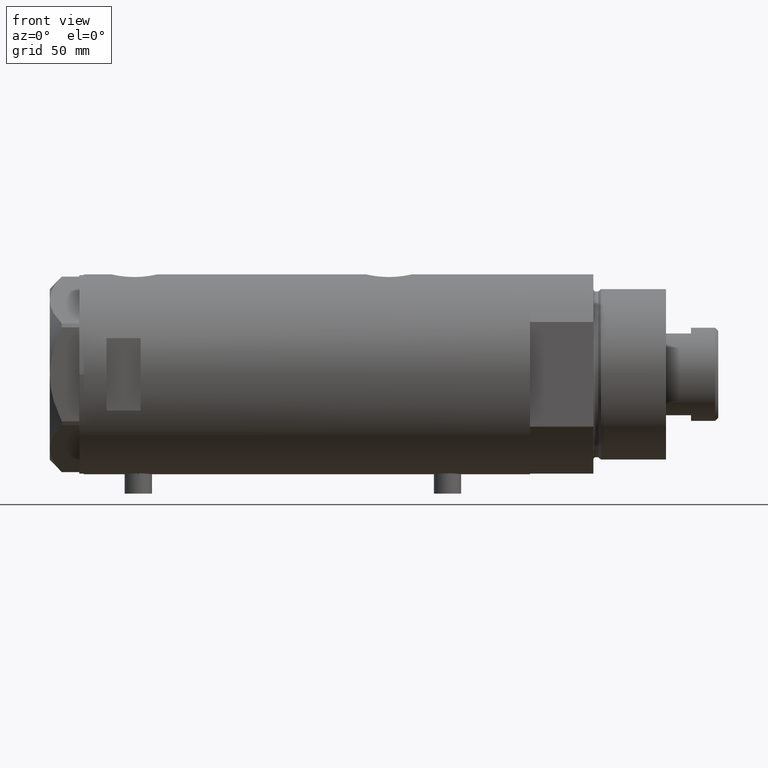
[diagram: clean part render]
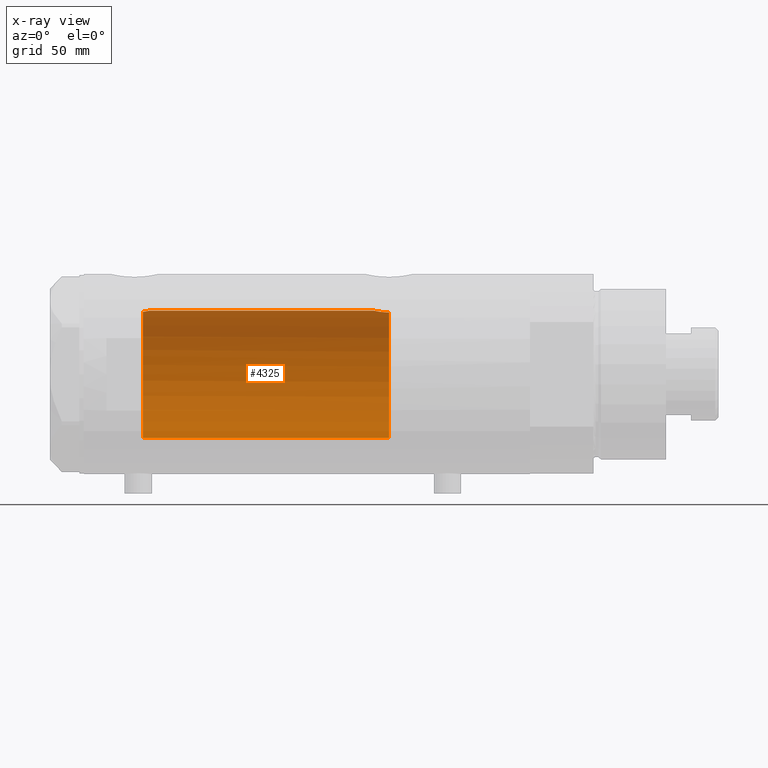
[diagram: x-ray — body ghosted, one internal face saturated and labeled with its STEP entity id]
A machine part, front view, then the same camera in x-ray: the body is ghosted and one INTERNAL B-rep face — a face not visible from any outside direction — is saturated and labeled: STEP entity #4325.
In plain terms, the highlighted cylindrical surface (partial cylindrical patch) has radius 28 mm, axis along (1, 0, -0).
Its self-contained STEP definition (entity closure, byte-faithful):
#82 = CARTESIAN_POINT ( 'NONE',  ( 27.57921322802619457, 4.838471943606465153, -31.63541026849052429 ) ) ;
#95 = EDGE_CURVE ( 'NONE', #543, #1151, #2525, .T. ) ;
#157 = CARTESIAN_POINT ( 'NONE',  ( 27.59012538417911031, 4.776664836238046163, 71.36675298569846859 ) ) ;
#173 = EDGE_CURVE ( 'NONE', #1151, #3451, #1656, .T. ) ;
#347 = CYLINDRICAL_SURFACE ( 'NONE', #1332, 28.00000000000000000 ) ;
#371 = ORIENTED_EDGE ( 'NONE', *, *, #173, .F. ) ;
#438 = CARTESIAN_POINT ( 'NONE',  ( 28.00000000000000000, 8.058211040487717449E-16, -29.52000000000000313 ) ) ;
#455 = CARTESIAN_POINT ( 'NONE',  ( 27.65669575048418238, 4.382057994727794004, -31.17233761202032838 ) ) ;
#458 = CIRCLE ( 'NONE', #3250, 28.00000000000000000 ) ;
#500 = CARTESIAN_POINT ( 'NONE',  ( 27.40633791352276560, 5.740289853568799394, -32.85469713442370221 ) ) ;
#543 = VERTEX_POINT ( 'NONE', #3290 ) ;
#635 = ORIENTED_EDGE ( 'NONE', *, *, #95, .F. ) ;
#637 = VECTOR ( 'NONE', #4269, 1000.000000000000000 ) ;
#755 = FACE_OUTER_BOUND ( 'NONE', #1268, .T. ) ;
#788 = CARTESIAN_POINT ( 'NONE',  ( 27.77951318121831292, 3.511620812961478766, -30.53115835401436584 ) ) ;
#812 = CARTESIAN_POINT ( 'NONE',  ( 27.21605408577812568, 6.579240077698946365, -36.20000000000000995 ) ) ;
#926 = CARTESIAN_POINT ( 'NONE',  ( 27.71586615897684780, 3.998795151939225523, 70.64767395625744939 ) ) ;
#947 = CARTESIAN_POINT ( 'NONE',  ( 28.00000000000000000, 0.000000000000000000, 69.32000000000000739 ) ) ;
#961 = CARTESIAN_POINT ( 'NONE',  ( 27.46622653369042411, 5.441176343402230664, 72.20000000000001705 ) ) ;
#1084 = CARTESIAN_POINT ( 'NONE',  ( 27.86588799758910895, 2.744542339393448493, -30.11578757899564351 ) ) ;
#1108 = CARTESIAN_POINT ( 'NONE',  ( 27.21712162367727927, 6.574850051620749092, -35.76016190408788731 ) ) ;
#1151 = VERTEX_POINT ( 'NONE', #438 ) ;
#1153 = CARTESIAN_POINT ( 'NONE',  ( 27.26132124301009441, 6.389601967157239493, -34.46983701249831711 ) ) ;
#1268 = EDGE_LOOP ( 'NONE', ( #635, #2248, #2836, #3437, #2290, #371 ) ) ;
#1277 = CARTESIAN_POINT ( 'NONE',  ( -28.00000000000000000, 0.000000000000000000, 72.20000000000001705 ) ) ;
#1332 = AXIS2_PLACEMENT_3D ( 'NONE', #1694, #1735, #3562 ) ;
#1346 = DIRECTION ( 'NONE',  ( 0.000000000000000000, 0.000000000000000000, 1.000000000000000000 ) ) ;
#1493 = CARTESIAN_POINT ( 'NONE',  ( 27.94984428957576128, 1.729919005741101357, -29.73624844305086512 ) ) ;
#1656 = B_SPLINE_CURVE_WITH_KNOTS ( 'NONE', 3,
 ( #2241, #3646, #2173, #1493, #2926, #1084, #3972, #2146, #788, #3622, #455, #82, #4019, #1852, #3602, #500, #2493, #4339, #1153, #3949, #2574, #1108, #3994, #812 ),
 .UNSPECIFIED., .F., .F.,
 ( 4, 2, 2, 2, 2, 2, 2, 2, 2, 2, 2, 4 ),
 ( 0.02064447638625019690, 0.02194711032043805340, 0.02324974425462590644, 0.02390106122171983469, 0.02455237818881376294, 0.02585501212300162291, 0.02650632909009555116, 0.02715764605718948288, 0.02846027999137732550, 0.02976291392556516466, 0.03041423089265908597, 0.03106554785975300728 ),
 .UNSPECIFIED. ) ;
#1672 = CARTESIAN_POINT ( 'NONE',  ( 27.62184089756353700, 4.590621453796800644, 71.17847296394721468 ) ) ;
#1694 = CARTESIAN_POINT ( 'NONE',  ( 0.000000000000000000, 0.000000000000000000, 98.20000000000000284 ) ) ;
#1710 = VECTOR ( 'NONE', #4130, 1000.000000000000000 ) ;
#1735 = DIRECTION ( 'NONE',  ( -0.000000000000000000, -0.000000000000000000, -1.000000000000000000 ) ) ;
#1823 = CARTESIAN_POINT ( 'NONE',  ( 28.00000000000000000, 3.429011037612589276E-15, 98.20000000000000284 ) ) ;
#1852 = CARTESIAN_POINT ( 'NONE',  ( 27.50226589723266102, 5.257822516958276182, -32.13779315141981385 ) ) ;
#1893 = VERTEX_POINT ( 'NONE', #1277 ) ;
#1896 = EDGE_CURVE ( 'NONE', #2998, #3451, #3548, .T. ) ;
#1916 = AXIS2_PLACEMENT_3D ( 'NONE', #2725, #4114, #4137 ) ;
#1980 = CARTESIAN_POINT ( 'NONE',  ( 28.00000000000000355, 0.5407212781083803321, 69.32000000000003581 ) ) ;
#2146 = CARTESIAN_POINT ( 'NONE',  ( 27.80267334785860101, 3.323944738624912798, -30.41709962017577951 ) ) ;
#2173 = CARTESIAN_POINT ( 'NONE',  ( 27.98989376185446432, 0.8673308354119273478, -29.56259295538816545 ) ) ;
#2189 = CARTESIAN_POINT ( 'NONE',  ( 27.46622653369042411, 5.441176343402230664, 72.20000000000001705 ) ) ;
#2213 = CARTESIAN_POINT ( 'NONE',  ( 27.49602064413222635, 5.290780227724656726, 71.97882924682045314 ) ) ;
#2228 = CARTESIAN_POINT ( 'NONE',  ( 27.21605408577812568, 6.579240077698946365, -36.20000000000000995 ) ) ;
#2241 = CARTESIAN_POINT ( 'NONE',  ( 28.00000000000000000, 8.058211040487717449E-16, -29.52000000000000313 ) ) ;
#2248 = ORIENTED_EDGE ( 'NONE', *, *, #2665, .F. ) ;
#2290 = ORIENTED_EDGE ( 'NONE', *, *, #1896, .T. ) ;
#2312 = CARTESIAN_POINT ( 'NONE',  ( 27.77752716845531822, 3.554080867558359280, 70.33702809021863800 ) ) ;
#2333 = CARTESIAN_POINT ( 'NONE',  ( 27.87926027245440608, 2.609415915507860895, 69.85365920364245085 ) ) ;
#2493 = CARTESIAN_POINT ( 'NONE',  ( 27.36295003163000672, 5.941130795499232065, -33.23794896005177435 ) ) ;
#2525 = LINE ( 'NONE', #1823, #637 ) ;
#2574 = CARTESIAN_POINT ( 'NONE',  ( 27.22604017942136423, 6.537820648187911310, -35.32472952793341392 ) ) ;
#2665 = EDGE_CURVE ( 'NONE', #3218, #543, #3155, .T. ) ;
#2725 = CARTESIAN_POINT ( 'NONE',  ( 0.000000000000000000, 0.000000000000000000, -36.20000000000000995 ) ) ;
#2737 = CARTESIAN_POINT ( 'NONE',  ( 27.85549123290575579, 2.850830541327404877, 69.96370468682907529 ) ) ;
#2815 = DIRECTION ( 'NONE',  ( 1.000000000000000000, 0.000000000000000000, 0.000000000000000000 ) ) ;
#2836 = ORIENTED_EDGE ( 'NONE', *, *, #2882, .T. ) ;
#2882 = EDGE_CURVE ( 'NONE', #3218, #1893, #458, .T. ) ;
#2926 = CARTESIAN_POINT ( 'NONE',  ( 27.92057377942991891, 2.145335874642057217, -29.86449057456583489 ) ) ;
#2998 = VERTEX_POINT ( 'NONE', #3982 ) ;
#3121 = LINE ( 'NONE', #3803, #1710 ) ;
#3155 = B_SPLINE_CURVE_WITH_KNOTS ( 'NONE', 3,
 ( #2189, #2213, #3284, #157, #1672, #926, #2312, #2737, #2333, #4457, #4174, #3801, #1980, #947 ),
 .UNSPECIFIED., .F., .F.,
 ( 4, 2, 2, 2, 2, 2, 4 ),
 ( 0.03488855882532450325, 0.03568791961119571754, 0.03648728039706693183, 0.03808600196880933264, 0.03888536275468051917, 0.03968472354055171264, 0.04128344511229409958 ),
 .UNSPECIFIED. ) ;
#3218 = VERTEX_POINT ( 'NONE', #961 ) ;
#3250 = AXIS2_PLACEMENT_3D ( 'NONE', #4541, #1346, #2815 ) ;
#3284 = CARTESIAN_POINT ( 'NONE',  ( 27.52730847012277948, 5.126288527110444804, 71.76623399461912811 ) ) ;
#3290 = CARTESIAN_POINT ( 'NONE',  ( 28.00000000000000000, 0.000000000000000000, 69.32000000000000739 ) ) ;
#3437 = ORIENTED_EDGE ( 'NONE', *, *, #3729, .T. ) ;
#3451 = VERTEX_POINT ( 'NONE', #2228 ) ;
#3548 = CIRCLE ( 'NONE', #1916, 28.00000000000000000 ) ;
#3562 = DIRECTION ( 'NONE',  ( -1.000000000000000000, 0.000000000000000000, 0.000000000000000000 ) ) ;
#3602 = CARTESIAN_POINT ( 'NONE',  ( 27.47751794615729537, 5.385218554237049204, -32.31285718566402210 ) ) ;
#3622 = CARTESIAN_POINT ( 'NONE',  ( 27.70785054350542964, 4.050475470458777316, -30.89631279652927276 ) ) ;
#3646 = CARTESIAN_POINT ( 'NONE',  ( 28.00000000000000355, 0.4344375524774767294, -29.51999999999999957 ) ) ;
#3729 = EDGE_CURVE ( 'NONE', #1893, #2998, #3121, .T. ) ;
#3801 = CARTESIAN_POINT ( 'NONE',  ( 27.98435453724556510, 1.072101232728050579, 69.38566097371688102 ) ) ;
#3803 = CARTESIAN_POINT ( 'NONE',  ( -28.00000000000000000, 0.000000000000000000, 98.20000000000000284 ) ) ;
#3949 = CARTESIAN_POINT ( 'NONE',  ( 27.23306259439848276, 6.508606919525674606, -35.10931986330979271 ) ) ;
#3972 = CARTESIAN_POINT ( 'NONE',  ( 27.84585502960274184, 2.940342086136633171, -30.20946914370765768 ) ) ;
#3982 = CARTESIAN_POINT ( 'NONE',  ( -28.00000000000000000, 0.000000000000000000, -36.20000000000000995 ) ) ;
#3994 = CARTESIAN_POINT ( 'NONE',  ( 27.21525044627862755, 6.582564457995944807, -35.98128103916471332 ) ) ;
#4019 = CARTESIAN_POINT ( 'NONE',  ( 27.55311958554909424, 4.984468698502475981, -31.79897075987406296 ) ) ;
#4114 = DIRECTION ( 'NONE',  ( 0.000000000000000000, 0.000000000000000000, -1.000000000000000000 ) ) ;
#4130 = DIRECTION ( 'NONE',  ( -0.000000000000000000, -0.000000000000000000, -1.000000000000000000 ) ) ;
#4137 = DIRECTION ( 'NONE',  ( -1.000000000000000000, 0.000000000000000000, 0.000000000000000000 ) ) ;
#4174 = CARTESIAN_POINT ( 'NONE',  ( 27.93969014165221765, 1.855286977351521704, 69.58124112405666040 ) ) ;
#4269 = DIRECTION ( 'NONE',  ( -0.000000000000000000, -0.000000000000000000, -1.000000000000000000 ) ) ;
#4325 = ADVANCED_FACE ( 'NONE', ( #755 ), #347, .F. ) ;
#4339 = CARTESIAN_POINT ( 'NONE',  ( 27.28989504668421517, 6.268149480003700091, -34.05093353430704184 ) ) ;
#4457 = CARTESIAN_POINT ( 'NONE',  ( 27.92131942247208798, 2.112374604004425116, 69.66259974202708349 ) ) ;
#4541 = CARTESIAN_POINT ( 'NONE',  ( 0.000000000000000000, 0.000000000000000000, 72.20000000000001705 ) ) ;